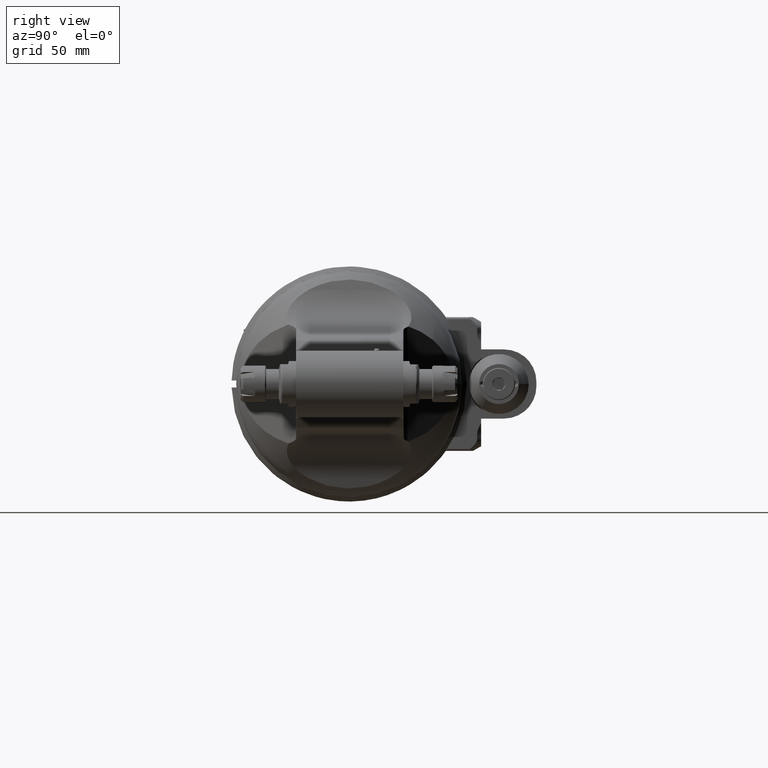
[diagram: clean part render]
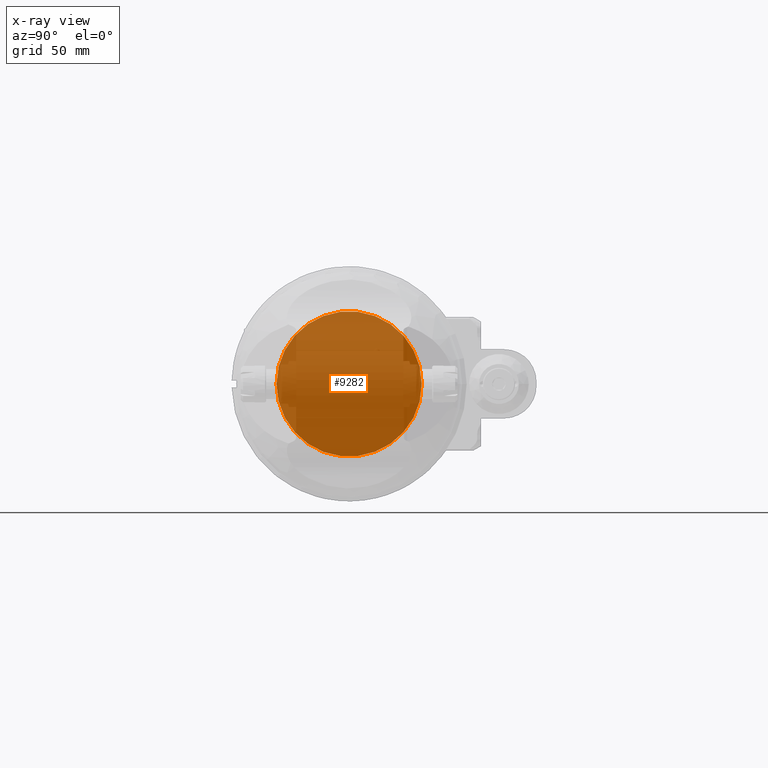
[diagram: x-ray — body ghosted, one internal face saturated and labeled with its STEP entity id]
A machine part, right view, then the same camera in x-ray: the body is ghosted and one INTERNAL B-rep face — a face not visible from any outside direction — is saturated and labeled: STEP entity #9282.
In plain terms, the highlighted planar face has unit normal (-1, 0, -0).
Its self-contained STEP definition (entity closure, byte-faithful):
#494=PLANE('',#10222);
#1056=FACE_OUTER_BOUND('',#1689,.T.);
#1689=EDGE_LOOP('',(#8047));
#2183=CIRCLE('',#10221,31.5);
#4433=VERTEX_POINT('',#46358);
#5681=EDGE_CURVE('',#4433,#4433,#2183,.T.);
#8047=ORIENTED_EDGE('',*,*,#5681,.T.);
#9282=ADVANCED_FACE('',(#1056),#494,.T.);
#10221=AXIS2_PLACEMENT_3D('',#46360,#12461,#12462);
#10222=AXIS2_PLACEMENT_3D('',#46361,#12463,#12464);
#12461=DIRECTION('center_axis',(0.,1.,0.));
#12462=DIRECTION('ref_axis',(0.,0.,1.));
#12463=DIRECTION('center_axis',(0.,1.,0.));
#12464=DIRECTION('ref_axis',(0.,0.,-1.));
#46358=CARTESIAN_POINT('',(0.,148.,-31.5));
#46360=CARTESIAN_POINT('Origin',(0.,148.,0.));
#46361=CARTESIAN_POINT('Origin',(0.,148.,-30.75));